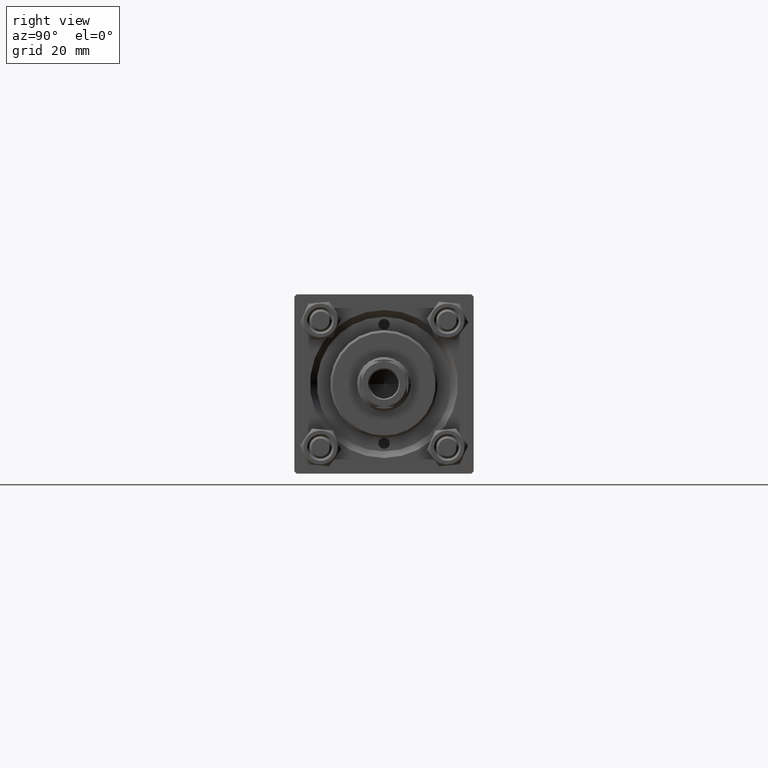
[diagram: clean part render]
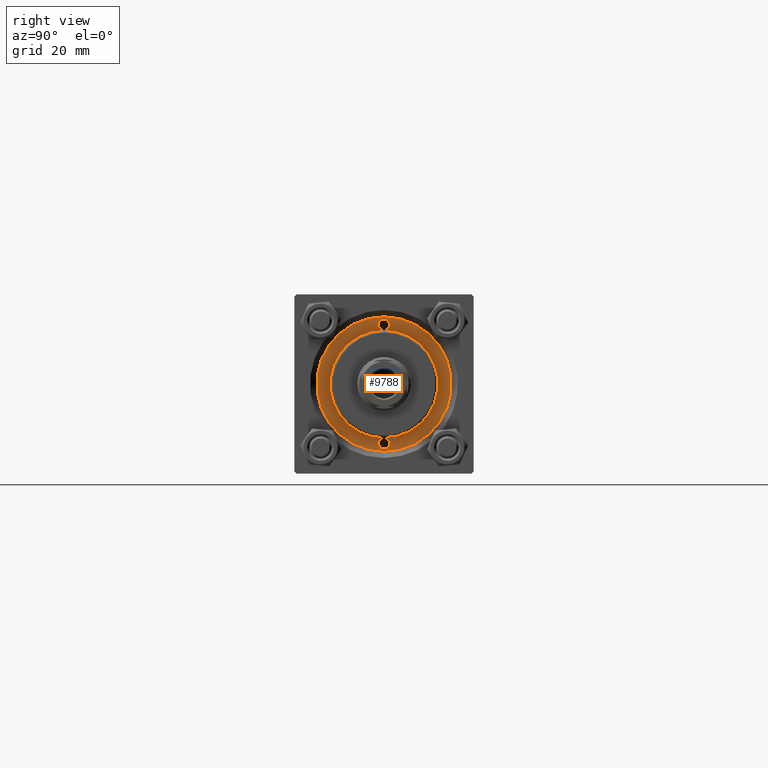
[diagram: same view with one face highlighted and labeled with its STEP entity id]
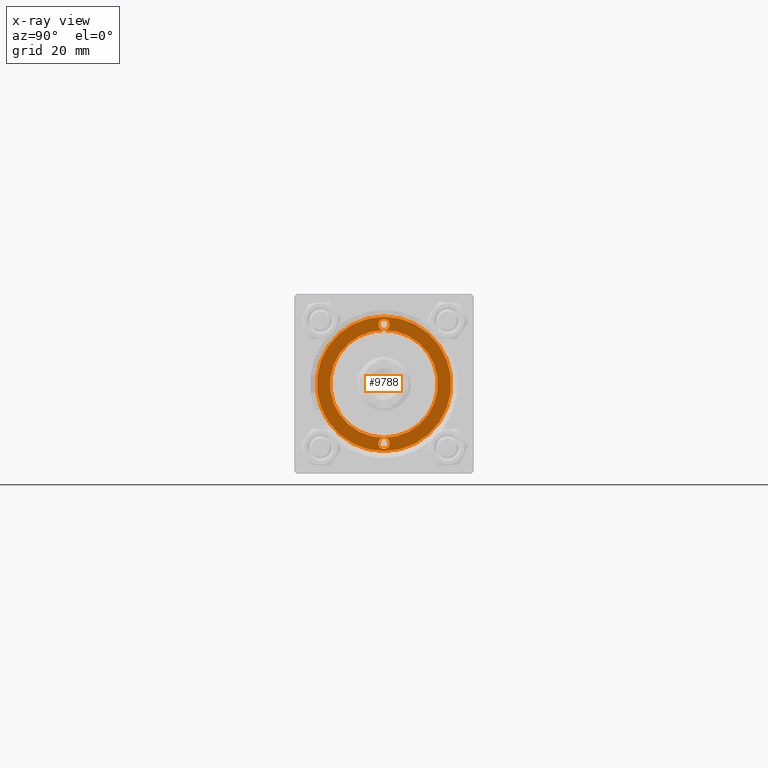
[diagram: x-ray of the same camera — body ghosted, the highlighted face saturated]
A machine part, right view. The second image highlights one B-rep face of the part: STEP entity #9788.
The next image is the same camera in x-ray: the body ghosted, the highlighted face saturated — about 0% of this face is hidden behind the body in this view.
In plain terms, the highlighted planar face has unit normal (1, 0, -0).
Its self-contained STEP definition (entity closure, byte-faithful):
#128 = FACE_BOUND ( 'NONE', #6271, .T. ) ;
#236 = DIRECTION ( 'NONE',  ( 0.000000000000000000, 0.000000000000000000, 1.000000000000000000 ) ) ;
#380 = PLANE ( 'NONE',  #22351 ) ;
#952 = AXIS2_PLACEMENT_3D ( 'NONE', #33558, #14408, #29793 ) ;
#2580 = CARTESIAN_POINT ( 'NONE',  ( -12.00000000000000178, 0.000000000000000000, 28.69999999999999929 ) ) ;
#2903 = DIRECTION ( 'NONE',  ( 1.000000000000000000, 0.000000000000000000, 0.000000000000000000 ) ) ;
#4190 = EDGE_CURVE ( 'NONE', #44541, #14879, #12783, .T. ) ;
#4232 = CARTESIAN_POINT ( 'NONE',  ( -13.25000000000000178, 0.000000000000000000, 28.69999999999999929 ) ) ;
#4289 = VERTEX_POINT ( 'NONE', #49175 ) ;
#4411 = CARTESIAN_POINT ( 'NONE',  ( 0.000000000000000000, 0.000000000000000000, 28.69999999999999929 ) ) ;
#6271 = EDGE_LOOP ( 'NONE', ( #40741, #16760, #21972, #15780, #6351, #27129 ) ) ;
#6351 = ORIENTED_EDGE ( 'NONE', *, *, #20637, .F. ) ;
#6355 = EDGE_CURVE ( 'NONE', #28535, #43482, #18356, .T. ) ;
#8328 = CARTESIAN_POINT ( 'NONE',  ( 0.000000000000000000, 0.000000000000000000, 28.69999999999999929 ) ) ;
#8356 = ORIENTED_EDGE ( 'NONE', *, *, #4190, .T. ) ;
#9788 = ADVANCED_FACE ( 'NONE', ( #128, #15561 ), #380, .T. ) ;
#10274 = AXIS2_PLACEMENT_3D ( 'NONE', #4232, #42598, #23444 ) ;
#10503 = CARTESIAN_POINT ( 'NONE',  ( -13.25000000000000178, 0.000000000000000000, 28.69999999999999929 ) ) ;
#12087 = AXIS2_PLACEMENT_3D ( 'NONE', #26939, #49623, #49884 ) ;
#12537 = EDGE_LOOP ( 'NONE', ( #8356, #45074 ) ) ;
#12783 = CIRCLE ( 'NONE', #15194, 15.00000000000000000 ) ;
#13488 = DIRECTION ( 'NONE',  ( 0.000000000000000000, 0.000000000000000000, 1.000000000000000000 ) ) ;
#14408 = DIRECTION ( 'NONE',  ( 0.000000000000000000, 0.000000000000000000, 1.000000000000000000 ) ) ;
#14712 = CIRCLE ( 'NONE', #49356, 1.249999999999997558 ) ;
#14879 = VERTEX_POINT ( 'NONE', #49409 ) ;
#15194 = AXIS2_PLACEMENT_3D ( 'NONE', #8328, #23741, #18943 ) ;
#15561 = FACE_OUTER_BOUND ( 'NONE', #12537, .T. ) ;
#15593 = EDGE_CURVE ( 'NONE', #43482, #47959, #22427, .T. ) ;
#15780 = ORIENTED_EDGE ( 'NONE', *, *, #16132, .F. ) ;
#15805 = DIRECTION ( 'NONE',  ( 1.000000000000000000, 0.000000000000000000, -0.000000000000000000 ) ) ;
#15975 = AXIS2_PLACEMENT_3D ( 'NONE', #4411, #13488, #32659 ) ;
#16132 = EDGE_CURVE ( 'NONE', #47959, #43482, #37704, .T. ) ;
#16760 = ORIENTED_EDGE ( 'NONE', *, *, #6355, .F. ) ;
#18356 = CIRCLE ( 'NONE', #10274, 1.249999999999997558 ) ;
#18943 = DIRECTION ( 'NONE',  ( 1.000000000000000000, 0.000000000000000000, 0.000000000000000000 ) ) ;
#20637 = EDGE_CURVE ( 'NONE', #4289, #47959, #39478, .T. ) ;
#21972 = ORIENTED_EDGE ( 'NONE', *, *, #27147, .F. ) ;
#22351 = AXIS2_PLACEMENT_3D ( 'NONE', #49373, #30950, #15805 ) ;
#22427 = CIRCLE ( 'NONE', #24952, 12.00000000000000178 ) ;
#22746 = CIRCLE ( 'NONE', #952, 15.00000000000000000 ) ;
#23190 = AXIS2_PLACEMENT_3D ( 'NONE', #43478, #47522, #47270 ) ;
#23444 = DIRECTION ( 'NONE',  ( 1.000000000000000000, 0.000000000000000000, 0.000000000000000000 ) ) ;
#23741 = DIRECTION ( 'NONE',  ( 0.000000000000000000, 0.000000000000000000, 1.000000000000000000 ) ) ;
#24508 = CARTESIAN_POINT ( 'NONE',  ( 12.00000000000000178, 0.000000000000000000, 28.69999999999999929 ) ) ;
#24952 = AXIS2_PLACEMENT_3D ( 'NONE', #38860, #236, #42646 ) ;
#25465 = CARTESIAN_POINT ( 'NONE',  ( -14.49999999999999822, 1.530808498934190585E-16, 28.69999999999999929 ) ) ;
#25709 = EDGE_CURVE ( 'NONE', #14879, #44541, #22746, .T. ) ;
#26939 = CARTESIAN_POINT ( 'NONE',  ( 13.25000000000000000, 0.000000000000000000, 28.69999999999999929 ) ) ;
#27129 = ORIENTED_EDGE ( 'NONE', *, *, #39138, .F. ) ;
#27147 = EDGE_CURVE ( 'NONE', #43482, #28535, #14712, .T. ) ;
#28535 = VERTEX_POINT ( 'NONE', #25465 ) ;
#29793 = DIRECTION ( 'NONE',  ( 1.000000000000000000, 0.000000000000000000, 0.000000000000000000 ) ) ;
#30950 = DIRECTION ( 'NONE',  ( 0.000000000000000000, 0.000000000000000000, 1.000000000000000000 ) ) ;
#31291 = CARTESIAN_POINT ( 'NONE',  ( -15.00000000000000000, 0.000000000000000000, 28.69999999999999929 ) ) ;
#32040 = CIRCLE ( 'NONE', #23190, 1.249999999999999334 ) ;
#32659 = DIRECTION ( 'NONE',  ( 1.000000000000000000, 0.000000000000000000, 0.000000000000000000 ) ) ;
#33558 = CARTESIAN_POINT ( 'NONE',  ( 0.000000000000000000, 0.000000000000000000, 28.69999999999999929 ) ) ;
#37704 = CIRCLE ( 'NONE', #15975, 12.00000000000000178 ) ;
#38860 = CARTESIAN_POINT ( 'NONE',  ( 0.000000000000000000, 0.000000000000000000, 28.69999999999999929 ) ) ;
#39138 = EDGE_CURVE ( 'NONE', #47959, #4289, #32040, .T. ) ;
#39478 = CIRCLE ( 'NONE', #12087, 1.249999999999999334 ) ;
#40741 = ORIENTED_EDGE ( 'NONE', *, *, #15593, .F. ) ;
#41516 = DIRECTION ( 'NONE',  ( 0.000000000000000000, 0.000000000000000000, 1.000000000000000000 ) ) ;
#42598 = DIRECTION ( 'NONE',  ( 0.000000000000000000, 0.000000000000000000, 1.000000000000000000 ) ) ;
#42646 = DIRECTION ( 'NONE',  ( 1.000000000000000000, 0.000000000000000000, 0.000000000000000000 ) ) ;
#43478 = CARTESIAN_POINT ( 'NONE',  ( 13.25000000000000000, 0.000000000000000000, 28.69999999999999929 ) ) ;
#43482 = VERTEX_POINT ( 'NONE', #2580 ) ;
#44541 = VERTEX_POINT ( 'NONE', #31291 ) ;
#45074 = ORIENTED_EDGE ( 'NONE', *, *, #25709, .T. ) ;
#47270 = DIRECTION ( 'NONE',  ( 1.000000000000000000, 0.000000000000000000, 0.000000000000000000 ) ) ;
#47522 = DIRECTION ( 'NONE',  ( 0.000000000000000000, 0.000000000000000000, 1.000000000000000000 ) ) ;
#47959 = VERTEX_POINT ( 'NONE', #24508 ) ;
#49175 = CARTESIAN_POINT ( 'NONE',  ( 14.49999999999999822, 0.000000000000000000, 28.69999999999999929 ) ) ;
#49356 = AXIS2_PLACEMENT_3D ( 'NONE', #10503, #41516, #2903 ) ;
#49373 = CARTESIAN_POINT ( 'NONE',  ( 0.000000000000000000, 0.000000000000000000, 28.69999999999999929 ) ) ;
#49409 = CARTESIAN_POINT ( 'NONE',  ( 15.00000000000000000, 1.836970198721029589E-15, 28.69999999999999929 ) ) ;
#49623 = DIRECTION ( 'NONE',  ( 0.000000000000000000, 0.000000000000000000, 1.000000000000000000 ) ) ;
#49884 = DIRECTION ( 'NONE',  ( 1.000000000000000000, 0.000000000000000000, 0.000000000000000000 ) ) ;